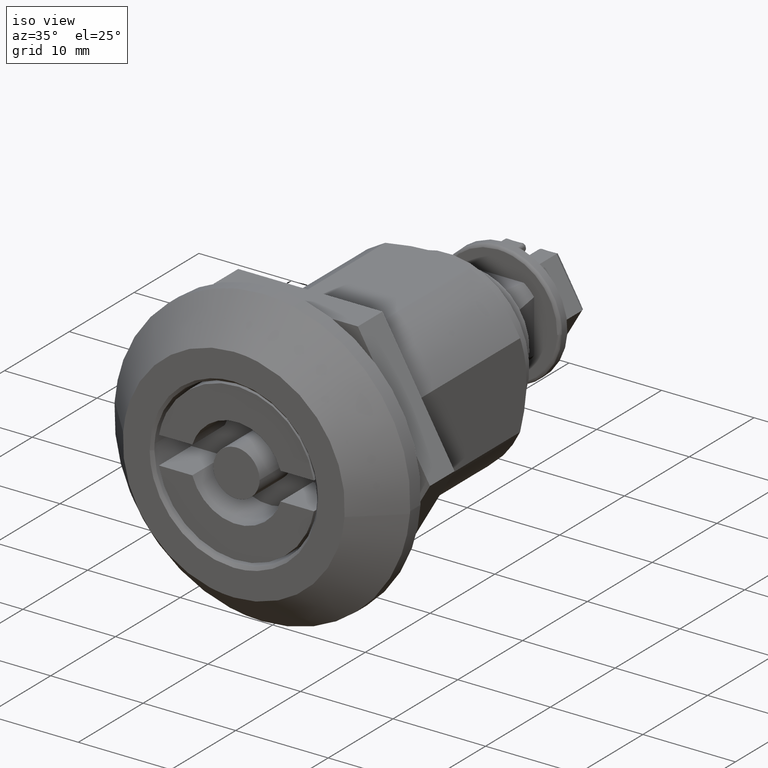
[diagram: clean part render]
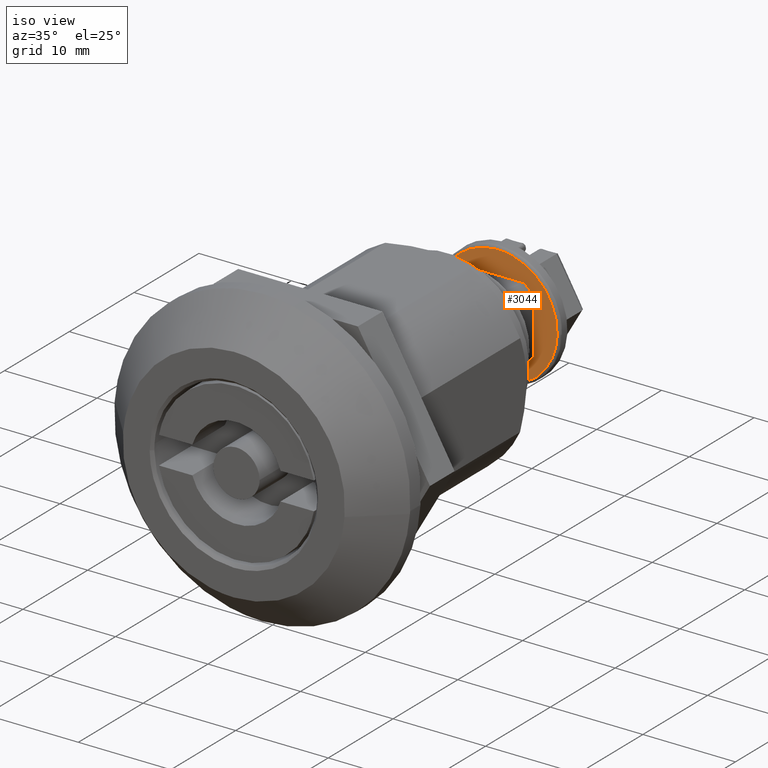
[diagram: same view with one face highlighted and labeled with its STEP entity id]
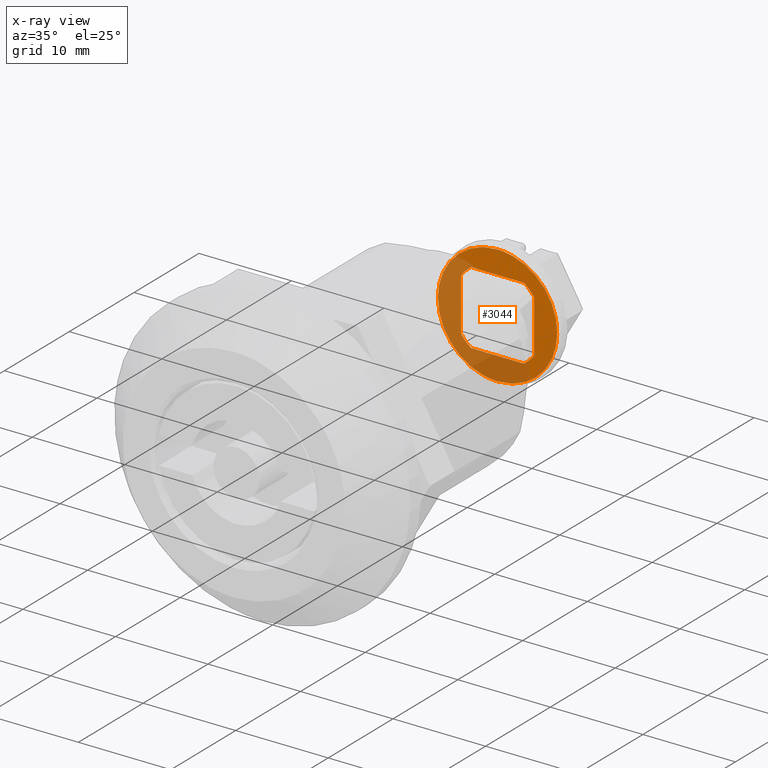
[diagram: x-ray of the same camera — body ghosted, the highlighted face saturated]
A machine part, iso view. The second image highlights one B-rep face of the part: STEP entity #3044.
The next image is the same camera in x-ray: the body ghosted, the highlighted face saturated — about 50% of this face is hidden behind the body in this view.
In plain terms, the highlighted face is a freeform B-spline surface patch.
Its self-contained STEP definition (entity closure, byte-faithful):
#2548=CARTESIAN_POINT('',(-3.949999774227138,34.700000000000003,-2.854494375462505));
#2549=VERTEX_POINT('',#2548);
#2563=CARTESIAN_POINT('',(-2.854494375526428,34.700000000000003,-3.949999774227184));
#2564=VERTEX_POINT('',#2563);
#2565=CARTESIAN_POINT('',(-3.949999774227138,34.700000000000003,-2.854494375462505));
#2566=CARTESIAN_POINT('',(-3.490433822472520,34.700000000000010,-3.490433822439644));
#2567=CARTESIAN_POINT('',(-2.854494375526428,34.700000000000003,-3.949999774227184));
#2575=(BOUNDED_CURVE()B_SPLINE_CURVE(2,(#2565,#2566,#2567),.UNSPECIFIED.,.F.,.U.)CURVE()GEOMETRIC_REPRESENTATION_ITEM()QUASI_UNIFORM_CURVE()RATIONAL_B_SPLINE_CURVE((1.0,0.987286553366350,1.0))REPRESENTATION_ITEM(''));
#2576=EDGE_CURVE('',#2549,#2564,#2575,.T.);
#2608=CARTESIAN_POINT('',(2.854494375412743,34.700000000000003,-3.949999774227184));
#2609=VERTEX_POINT('',#2608);
#2623=CARTESIAN_POINT('',(3.949999774227186,34.700000000000003,-2.854494375526430));
#2624=VERTEX_POINT('',#2623);
#2625=CARTESIAN_POINT('',(2.854494375412743,34.700000000000003,-3.949999774227184));
#2626=CARTESIAN_POINT('',(3.490433822418993,34.700000000000003,-3.490433822477504));
#2627=CARTESIAN_POINT('',(3.949999774227186,34.700000000000003,-2.854494375526430));
#2635=(BOUNDED_CURVE()B_SPLINE_CURVE(2,(#2625,#2626,#2627),.UNSPECIFIED.,.F.,.U.)CURVE()GEOMETRIC_REPRESENTATION_ITEM()QUASI_UNIFORM_CURVE()RATIONAL_B_SPLINE_CURVE((1.0,0.987286553365692,1.0))REPRESENTATION_ITEM(''));
#2636=EDGE_CURVE('',#2609,#2624,#2635,.T.);
#2735=CARTESIAN_POINT('',(3.949999774227186,34.700000000000003,2.854494375412740));
#2736=VERTEX_POINT('',#2735);
#2750=CARTESIAN_POINT('',(2.854494375462508,34.700000000000003,3.949999774227140));
#2751=VERTEX_POINT('',#2750);
#2752=CARTESIAN_POINT('',(3.949999774227186,34.700000000000003,2.854494375412740));
#2753=CARTESIAN_POINT('',(3.490433822450970,34.700000000000003,3.490433822425335));
#2754=CARTESIAN_POINT('',(2.854494375462508,34.700000000000003,3.949999774227140));
#2762=(BOUNDED_CURVE()B_SPLINE_CURVE(2,(#2752,#2753,#2754),.UNSPECIFIED.,.F.,.U.)CURVE()GEOMETRIC_REPRESENTATION_ITEM()QUASI_UNIFORM_CURVE()RATIONAL_B_SPLINE_CURVE((1.0,0.987286553364848,1.0))REPRESENTATION_ITEM(''));
#2763=EDGE_CURVE('',#2736,#2751,#2762,.T.);
#2795=CARTESIAN_POINT('',(-2.854494375462503,34.700000000000003,3.949999774227140));
#2796=VERTEX_POINT('',#2795);
#2810=CARTESIAN_POINT('',(-3.949999774227138,34.700000000000003,2.854494375441165));
#2811=VERTEX_POINT('',#2810);
#2812=CARTESIAN_POINT('',(-2.854494375462503,34.700000000000003,3.949999774227140));
#2813=CARTESIAN_POINT('',(-3.490433822448109,34.700000000000003,3.490433822437129));
#2814=CARTESIAN_POINT('',(-3.949999774227138,34.700000000000003,2.854494375441165));
#2822=(BOUNDED_CURVE()B_SPLINE_CURVE(2,(#2812,#2813,#2814),.UNSPECIFIED.,.F.,.U.)CURVE()GEOMETRIC_REPRESENTATION_ITEM()QUASI_UNIFORM_CURVE()RATIONAL_B_SPLINE_CURVE((1.0,0.987286553365224,1.0))REPRESENTATION_ITEM(''));
#2823=EDGE_CURVE('',#2796,#2811,#2822,.T.);
#2862=CARTESIAN_POINT('',(-3.949999774227138,34.700000000000003,-2.854494375462505));
#2863=CARTESIAN_POINT('',(-3.949999774227138,34.700000000000003,2.854494375441165));
#2864=QUASI_UNIFORM_CURVE('',1,(#2862,#2863),.UNSPECIFIED.,.F.,.U.);
#2865=EDGE_CURVE('',#2549,#2811,#2864,.T.);
#2894=CARTESIAN_POINT('',(3.949999774227186,34.700000000000003,-2.854494375526430));
#2895=CARTESIAN_POINT('',(3.949999774227186,34.700000000000003,2.854494375412740));
#2896=QUASI_UNIFORM_CURVE('',1,(#2894,#2895),.UNSPECIFIED.,.F.,.U.);
#2897=EDGE_CURVE('',#2624,#2736,#2896,.T.);
#2923=CARTESIAN_POINT('',(-2.854494375462503,34.700000000000003,3.949999774227140));
#2924=CARTESIAN_POINT('',(2.854494375462508,34.700000000000003,3.949999774227140));
#2925=QUASI_UNIFORM_CURVE('',1,(#2923,#2924),.UNSPECIFIED.,.F.,.U.);
#2926=EDGE_CURVE('',#2796,#2751,#2925,.T.);
#2954=CARTESIAN_POINT('',(-2.854494375526428,34.700000000000003,-3.949999774227184));
#2955=CARTESIAN_POINT('',(2.854494375412743,34.700000000000003,-3.949999774227184));
#2956=QUASI_UNIFORM_CURVE('',1,(#2954,#2955),.UNSPECIFIED.,.F.,.U.);
#2957=EDGE_CURVE('',#2564,#2609,#2956,.T.);
#2963=CARTESIAN_POINT('',(7.092114509521045,34.700000000000003,-7.094354975009867));
#2964=CARTESIAN_POINT('',(7.092114509521045,34.700000000000003,7.094355321013294));
#2965=CARTESIAN_POINT('',(-7.092114855416731,34.700000000000003,-7.094354975009867));
#2966=CARTESIAN_POINT('',(-7.092114855416731,34.700000000000003,7.094355321013294));
#2967=B_SPLINE_SURFACE_WITH_KNOTS('',1,1,((#2963,#2965),(#2964,#2966)),.UNSPECIFIED.,.F.,.F.,.U.,(2,2),(2,2),(0.0,14.188710296023160),(0.0,14.184229364937771),.UNSPECIFIED.);
#2968=CARTESIAN_POINT('',(2.124692E-015,34.700000000000017,6.450000000009963));
#2969=VERTEX_POINT('',#2968);
#2970=CARTESIAN_POINT('',(-6.447963028016953,34.700000000000010,0.162089115991179));
#2971=VERTEX_POINT('',#2970);
#2972=CARTESIAN_POINT('',(2.124692E-015,34.700000000000017,6.450000000009963));
#2973=CARTESIAN_POINT('',(-6.289897304744765,34.700000000000017,6.450000000099630));
#2974=CARTESIAN_POINT('',(-6.447963028016954,34.700000000000010,0.162089115991179));
#2982=(BOUNDED_CURVE()B_SPLINE_CURVE(2,(#2972,#2973,#2974),.UNSPECIFIED.,.F.,.U.)B_SPLINE_CURVE_WITH_KNOTS((3,3),(0.0,0.245579891764304),.UNSPECIFIED.)CURVE()GEOMETRIC_REPRESENTATION_ITEM()RATIONAL_B_SPLINE_CURVE((1.0,0.712285260101175,0.989826157669136))REPRESENTATION_ITEM(''));
#2983=EDGE_CURVE('',#2969,#2971,#2982,.T.);
#2984=ORIENTED_EDGE('',*,*,#2983,.T.);
#2985=CARTESIAN_POINT('',(2.124692E-015,34.700000000000003,-6.450000000011498));
#2986=VERTEX_POINT('',#2985);
#2987=CARTESIAN_POINT('',(-6.447963028016954,34.700000000000010,0.162089115991179));
#2988=CARTESIAN_POINT('',(-6.450000007101054,34.700000000000003,0.081057357474858));
#2989=CARTESIAN_POINT('',(-6.450000007056229,34.700000000000003,1.763425E-010));
#2990=CARTESIAN_POINT('',(-6.450000003489208,34.700000000000003,-6.449999999924057));
#2991=CARTESIAN_POINT('',(2.124692E-015,34.700000000000003,-6.450000000011498));
#2999=(BOUNDED_CURVE()B_SPLINE_CURVE(2,(#2987,#2988,#2989,#2990,#2991),.UNSPECIFIED.,.F.,.U.)B_SPLINE_CURVE_WITH_KNOTS((3,2,3),(0.245579891764304,0.250000000000000,0.500000000000000),.UNSPECIFIED.)CURVE()GEOMETRIC_REPRESENTATION_ITEM()RATIONAL_B_SPLINE_CURVE((0.989826157669136,0.994821521085372,1.0,0.707106781186548,1.0))REPRESENTATION_ITEM(''));
#3000=EDGE_CURVE('',#2971,#2986,#2999,.T.);
#3001=ORIENTED_EDGE('',*,*,#3000,.T.);
#3002=CARTESIAN_POINT('',(6.447963028016957,34.700000000000003,-0.162089115992711));
#3003=VERTEX_POINT('',#3002);
#3004=CARTESIAN_POINT('',(2.124692E-015,34.700000000000003,-6.450000000011498));
#3005=CARTESIAN_POINT('',(6.289897304744770,34.700000000000003,-6.450000000101166));
#3006=CARTESIAN_POINT('',(6.447963028016957,34.700000000000010,-0.162089115992711));
#3014=(BOUNDED_CURVE()B_SPLINE_CURVE(2,(#3004,#3005,#3006),.UNSPECIFIED.,.F.,.U.)B_SPLINE_CURVE_WITH_KNOTS((3,3),(0.500000000000000,0.745579891764304),.UNSPECIFIED.)CURVE()GEOMETRIC_REPRESENTATION_ITEM()RATIONAL_B_SPLINE_CURVE((1.0,0.712285260101175,0.989826157669136))REPRESENTATION_ITEM(''));
#3015=EDGE_CURVE('',#2986,#3003,#3014,.T.);
#3016=ORIENTED_EDGE('',*,*,#3015,.T.);
#3017=CARTESIAN_POINT('',(6.447963028016957,34.700000000000010,-0.162089115992711));
#3018=CARTESIAN_POINT('',(6.450000007101059,34.699999999999996,-0.081057357476391));
#3019=CARTESIAN_POINT('',(6.450000007056232,34.700000000000003,-1.778769E-010));
#3020=CARTESIAN_POINT('',(6.450000003489212,34.700000000000017,6.449999999922521));
#3021=CARTESIAN_POINT('',(2.124692E-015,34.700000000000017,6.450000000009963));
#3029=(BOUNDED_CURVE()B_SPLINE_CURVE(2,(#3017,#3018,#3019,#3020,#3021),.UNSPECIFIED.,.F.,.U.)B_SPLINE_CURVE_WITH_KNOTS((3,2,3),(0.745579891764304,0.750000000000000,1.0),.UNSPECIFIED.)CURVE()GEOMETRIC_REPRESENTATION_ITEM()RATIONAL_B_SPLINE_CURVE((0.989826157669136,0.994821521085372,1.0,0.707106781186548,1.0))REPRESENTATION_ITEM(''));
#3030=EDGE_CURVE('',#3003,#2969,#3029,.T.);
#3031=ORIENTED_EDGE('',*,*,#3030,.T.);
#3032=EDGE_LOOP('',(#2984,#3001,#3016,#3031));
#3033=FACE_OUTER_BOUND('',#3032,.T.);
#3034=ORIENTED_EDGE('',*,*,#2576,.F.);
#3035=ORIENTED_EDGE('',*,*,#2865,.T.);
#3036=ORIENTED_EDGE('',*,*,#2823,.F.);
#3037=ORIENTED_EDGE('',*,*,#2926,.T.);
#3038=ORIENTED_EDGE('',*,*,#2763,.F.);
#3039=ORIENTED_EDGE('',*,*,#2897,.F.);
#3040=ORIENTED_EDGE('',*,*,#2636,.F.);
#3041=ORIENTED_EDGE('',*,*,#2957,.F.);
#3042=EDGE_LOOP('',(#3034,#3035,#3036,#3037,#3038,#3039,#3040,#3041));
#3043=FACE_BOUND('',#3042,.T.);
#3044=ADVANCED_FACE('',(#3033,#3043),#2967,.T.);